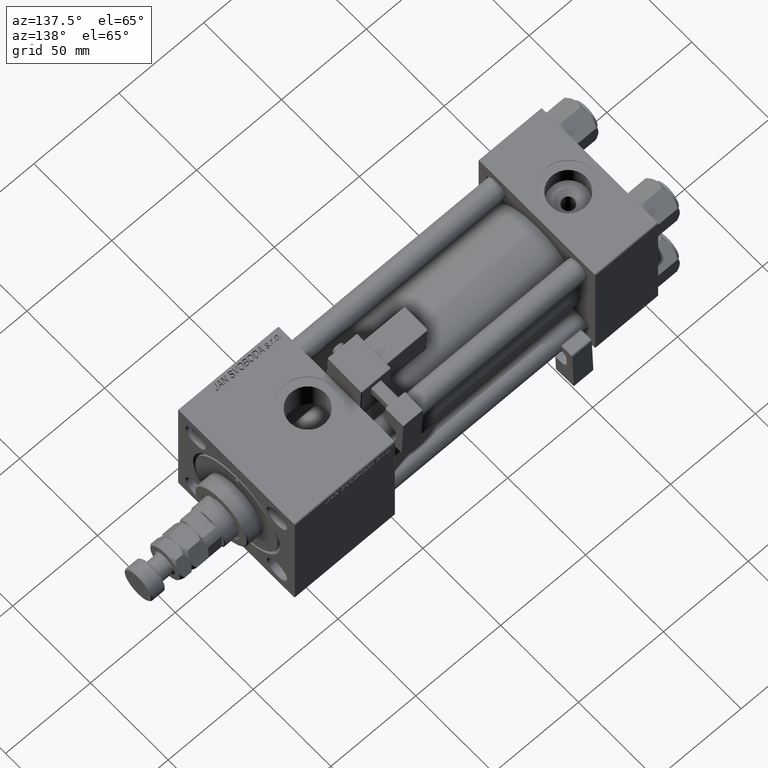
[diagram: clean part render]
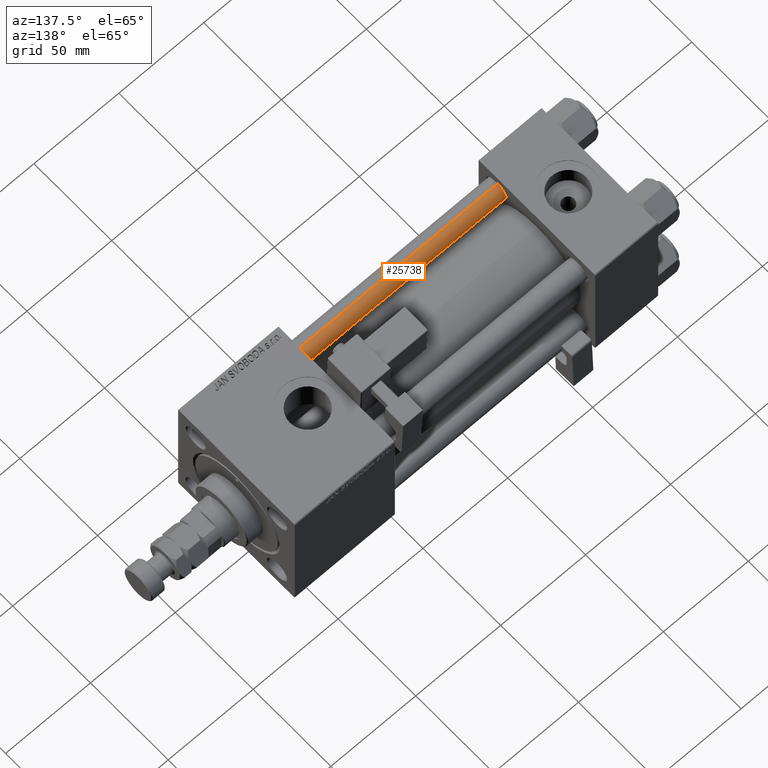
[diagram: same view with one face highlighted and labeled with its STEP entity id]
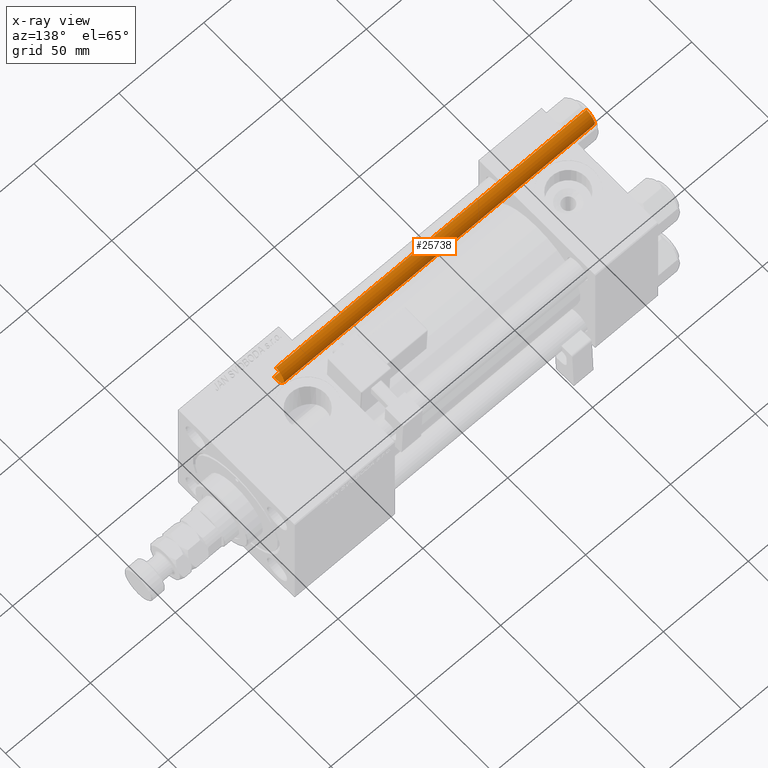
[diagram: x-ray of the same camera — body ghosted, the highlighted face saturated]
A machine part, auxiliary view. The second image highlights one B-rep face of the part: STEP entity #25738.
The next image is the same camera in x-ray: the body ghosted, the highlighted face saturated — about 0% of this face is hidden behind the body in this view.
In plain terms, the highlighted cylindrical surface (edge-blend (fillet) strip) has radius 6 mm, axis along (1, 0, -0).
Its self-contained STEP definition (entity closure, byte-faithful):
#6497 = DIRECTION ( 'NONE',  ( -0.000000000000000000, -0.000000000000000000, 1.000000000000000000 ) ) ;
#7206 = VERTEX_POINT ( 'NONE', #49497 ) ;
#9501 = CIRCLE ( 'NONE', #54145, 6.000000000000000888 ) ;
#11302 = VERTEX_POINT ( 'NONE', #21096 ) ;
#12772 = CYLINDRICAL_SURFACE ( 'NONE', #38850, 6.000000000000000888 ) ;
#13322 = DIRECTION ( 'NONE',  ( -0.000000000000000000, -0.000000000000000000, -1.000000000000000000 ) ) ;
#17262 = VERTEX_POINT ( 'NONE', #27440 ) ;
#18784 = DIRECTION ( 'NONE',  ( -0.000000000000000000, -0.000000000000000000, -1.000000000000000000 ) ) ;
#19354 = EDGE_LOOP ( 'NONE', ( #47163, #53131, #53690, #26834 ) ) ;
#21096 = CARTESIAN_POINT ( 'NONE',  ( 6.000000000000000888, 7.347880794884120722E-16, 0.5000000000000004441 ) ) ;
#21604 = LINE ( 'NONE', #48065, #27775 ) ;
#22318 = EDGE_CURVE ( 'NONE', #48403, #17262, #43121, .T. ) ;
#25120 = FACE_OUTER_BOUND ( 'NONE', #19354, .T. ) ;
#25738 = ADVANCED_FACE ( 'NONE', ( #25120 ), #12772, .T. ) ;
#26551 = DIRECTION ( 'NONE',  ( 1.000000000000000000, 0.000000000000000000, 0.000000000000000000 ) ) ;
#26816 = CARTESIAN_POINT ( 'NONE',  ( 0.000000000000000000, 0.000000000000000000, 0.5000000000000004441 ) ) ;
#26834 = ORIENTED_EDGE ( 'NONE', *, *, #52049, .T. ) ;
#27440 = CARTESIAN_POINT ( 'NONE',  ( -6.000000000000000888, 0.000000000000000000, 183.5000000000000000 ) ) ;
#27775 = VECTOR ( 'NONE', #46534, 1000.000000000000000 ) ;
#28261 = AXIS2_PLACEMENT_3D ( 'NONE', #44618, #40494, #48991 ) ;
#31119 = LINE ( 'NONE', #35761, #43568 ) ;
#35761 = CARTESIAN_POINT ( 'NONE',  ( -6.000000000000000888, 0.000000000000000000, 184.0000000000000000 ) ) ;
#35973 = EDGE_CURVE ( 'NONE', #48403, #11302, #21604, .T. ) ;
#37993 = EDGE_CURVE ( 'NONE', #17262, #7206, #31119, .T. ) ;
#38850 = AXIS2_PLACEMENT_3D ( 'NONE', #50588, #13322, #54164 ) ;
#40494 = DIRECTION ( 'NONE',  ( 0.000000000000000000, 0.000000000000000000, -1.000000000000000000 ) ) ;
#43121 = CIRCLE ( 'NONE', #28261, 6.000000000000000888 ) ;
#43568 = VECTOR ( 'NONE', #18784, 1000.000000000000000 ) ;
#44618 = CARTESIAN_POINT ( 'NONE',  ( 0.000000000000000000, 0.000000000000000000, 183.5000000000000000 ) ) ;
#46534 = DIRECTION ( 'NONE',  ( -0.000000000000000000, -0.000000000000000000, -1.000000000000000000 ) ) ;
#47163 = ORIENTED_EDGE ( 'NONE', *, *, #35973, .F. ) ;
#48065 = CARTESIAN_POINT ( 'NONE',  ( 6.000000000000000888, 7.347880794884120722E-16, 184.0000000000000000 ) ) ;
#48403 = VERTEX_POINT ( 'NONE', #49920 ) ;
#48991 = DIRECTION ( 'NONE',  ( 1.000000000000000000, 0.000000000000000000, 0.000000000000000000 ) ) ;
#49497 = CARTESIAN_POINT ( 'NONE',  ( -6.000000000000000888, 0.000000000000000000, 0.5000000000000004441 ) ) ;
#49920 = CARTESIAN_POINT ( 'NONE',  ( 6.000000000000000888, 7.347880794884120722E-16, 183.5000000000000000 ) ) ;
#50588 = CARTESIAN_POINT ( 'NONE',  ( 0.000000000000000000, 0.000000000000000000, 184.0000000000000000 ) ) ;
#52049 = EDGE_CURVE ( 'NONE', #7206, #11302, #9501, .T. ) ;
#53131 = ORIENTED_EDGE ( 'NONE', *, *, #22318, .T. ) ;
#53690 = ORIENTED_EDGE ( 'NONE', *, *, #37993, .T. ) ;
#54145 = AXIS2_PLACEMENT_3D ( 'NONE', #26816, #6497, #26551 ) ;
#54164 = DIRECTION ( 'NONE',  ( -1.000000000000000000, 0.000000000000000000, 0.000000000000000000 ) ) ;